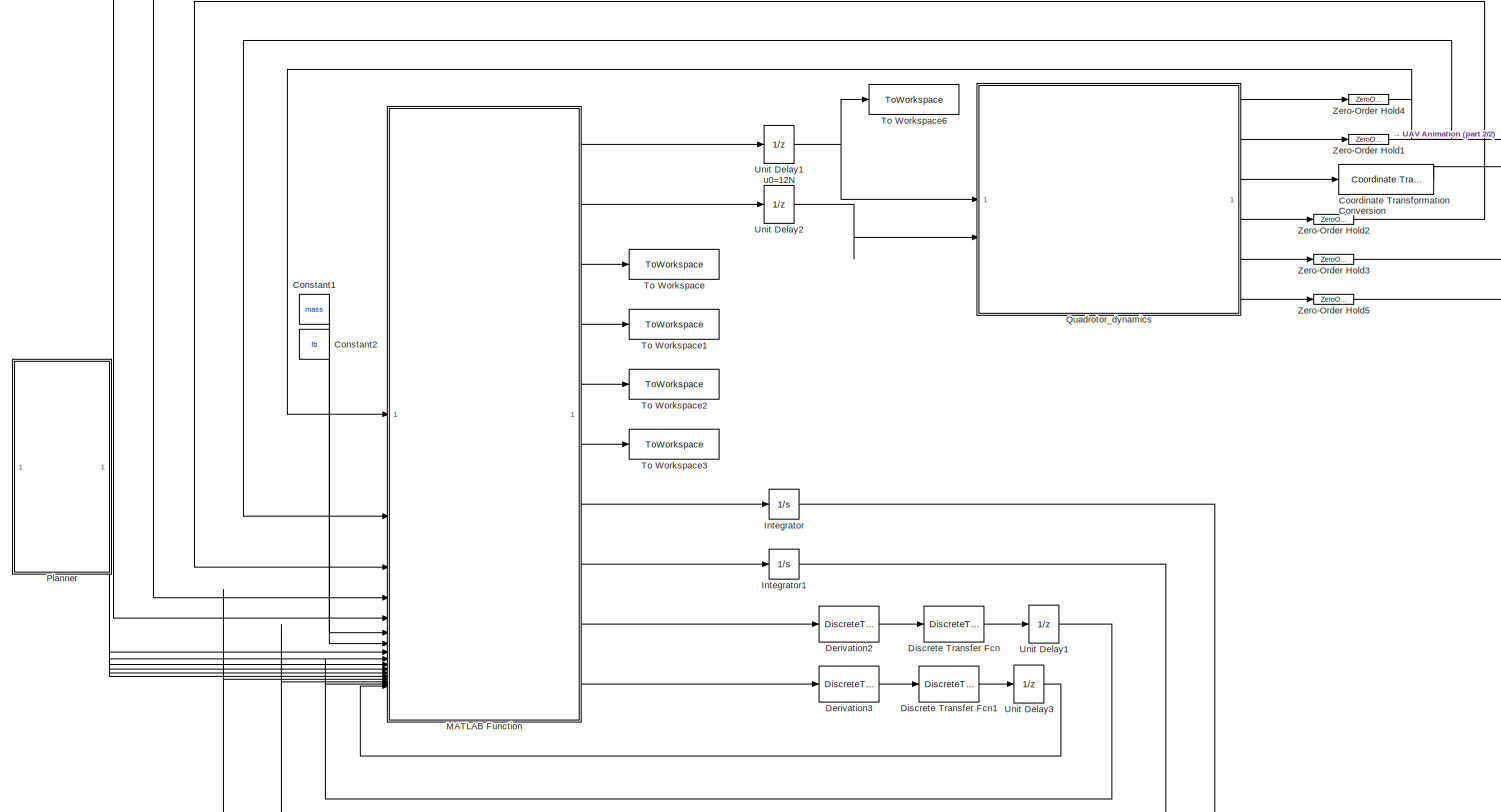
[diagram: root canvas - part 1/2, most of the canvas]
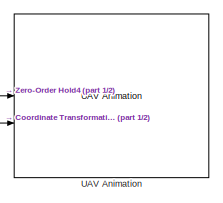
[diagram: root canvas - part 2/2, top right region]
MODEL slx_6ba06d13a4f2
KIND model
CONFIG AbsTol = auto
CONFIG EnableMultiTasking = off
CONFIG FixedStep = auto
CONFIG InitFcn = addpath('TRAJECTORIES\');\n%square_coplanar\ncircular_coplanar;
CONFIG MaxStep = auto
CONFIG MinStep = auto
CONFIG RelTol = 1e-3
CONFIG SampleTimeConstraint = Unconstrained
CONFIG SolverName = VariableStepAuto
CONFIG StartFcn = %% Setup Video e Timer\nvideoFile = 'Adaptative_quad.avi';\n%videoFile = 'Adaptative_circ.avi';\nvideoObj = VideoWriter(videoFile);\nvideoObj.FrameRate = 30;\nopen(videoObj);\nassignin('base','videoObj',videoObj);\n \n \nt = timer('ExecutionMode','fixedSpacing','Period',0.05,'StartDelay',2,...\n          'TimerFcn',@(~,~) captureFrame(findall(0,'Type','figure','Name','UAV Animation'), videoObj));\nstart(t);\n...<+36ch>
CONFIG StartTime = 0.0
CONFIG StopFcn = % Default graphics settings\nset(0, 'DefaultTextInterpreter', 'latex')\nset(0, 'DefaultLegendInterpreter', 'latex')\nset(0, 'DefaultAxesTickLabelInterpreter', 'latex')\nlw = 2;\n\nplot_errors = figure('Renderer', 'painters', 'Position', [10 10 900 650]);    \n\nsubplot(2,1,1)\nplot(out.tout, out.err_p.signals.values(1,:), 'k-', 'Linewidth', lw ,'Color', [0.2, 0.2, 0.2]);\nhold on\nplot(out.tout, out.err_p.si...<+3322ch>
CONFIG StopTime = tot_time
BLOCK [Constant] Constant1
  Value = mass
BLOCK [Constant] Constant2
  Value = Ib
BLOCK [Reference] Coordinate Transformation Conversion  REF=robotcorelib/Coordinate Transformation Conversion
  SourceBlock = robotcorelib/Coordinate Transformation Conversion
  SourceType = robotics.slcore.internal.block.CoordinateTransformationConversion
BLOCK [DiscreteTransferFcn] Derivation2
  Denominator = [Ts 0]
  InitialStates = [0 0 0]'
  InputPortMap = u0
  Numerator = [1 -1]
  SampleTime = Ts
BLOCK [DiscreteTransferFcn] Derivation3
  Denominator = [Ts 0]
  InitialStates = [0 0 0]'
  InputPortMap = u0
  Numerator = [1 -1]
  SampleTime = Ts
BLOCK [DiscreteTransferFcn] Discrete Transfer Fcn
  Denominator = [1  -0.812]
  InputPortMap = u0
  Numerator = 0.188
BLOCK [DiscreteTransferFcn] Discrete Transfer Fcn1
  Denominator = [1  -0.812]
  InputPortMap = u0
  Numerator = 0.188
BLOCK [Integrator] Integrator
BLOCK [Integrator] Integrator1
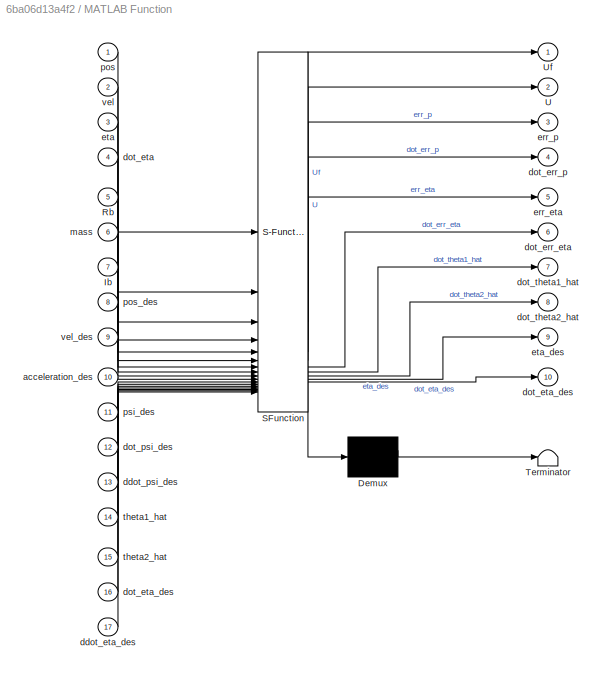
BLOCK [SubSystem] MATLAB Function
  ErrorFcn = Stateflow.Translate.translate
  PermitHierarchicalResolution = ExplicitOnly
  SFBlockType = MATLAB Function
  TreatAsAtomicUnit = on
BLOCK [Demux] MATLAB Function/ Demux 
  Outputs = 1
BLOCK [S-Function] MATLAB Function/ SFunction 
  EnableBusSupport = on
  FunctionName = sf_sfun
  PortCounts = [17 11]
  SFcnIsStateOwnerBlock = off
  SFunctionDeploymentMode = off
  Tag = Stateflow S-Function 5
BLOCK [Terminator] MATLAB Function/ Terminator 
BLOCK [Inport] MATLAB Function/Ib
  Port = 7
BLOCK [Inport] MATLAB Function/Rb
  Port = 5
BLOCK [Outport] MATLAB Function/U
  Port = 2
BLOCK [Outport] MATLAB Function/Uf
BLOCK [Inport] MATLAB Function/acceleration_des
  Port = 10
BLOCK [Inport] MATLAB Function/ddot_eta_des
  Port = 17
BLOCK [Inport] MATLAB Function/ddot_psi_des
  Port = 13
BLOCK [Outport] MATLAB Function/dot_err_eta
  Port = 6
BLOCK [Outport] MATLAB Function/dot_err_p
  Port = 4
BLOCK [Inport] MATLAB Function/dot_eta
  Port = 4
BLOCK [Outport] MATLAB Function/dot_eta_des
  Port = 10
BLOCK [Inport] MATLAB Function/dot_eta_des 
  Port = 16
BLOCK [Inport] MATLAB Function/dot_psi_des
  Port = 12
BLOCK [Outport] MATLAB Function/dot_theta1_hat
  Port = 7
BLOCK [Outport] MATLAB Function/dot_theta2_hat
  Port = 8
BLOCK [Outport] MATLAB Function/err_eta
  Port = 5
BLOCK [Outport] MATLAB Function/err_p
  Port = 3
BLOCK [Inport] MATLAB Function/eta
  Port = 3
BLOCK [Outport] MATLAB Function/eta_des
  Port = 9
BLOCK [Inport] MATLAB Function/mass
  Port = 6
BLOCK [Inport] MATLAB Function/pos
BLOCK [Inport] MATLAB Function/pos_des
  Port = 8
BLOCK [Inport] MATLAB Function/psi_des
  Port = 11
BLOCK [Inport] MATLAB Function/theta1_hat
  Port = 14
BLOCK [Inport] MATLAB Function/theta2_hat
  Port = 15
BLOCK [Inport] MATLAB Function/vel
  Port = 2
BLOCK [Inport] MATLAB Function/vel_des
  Port = 9
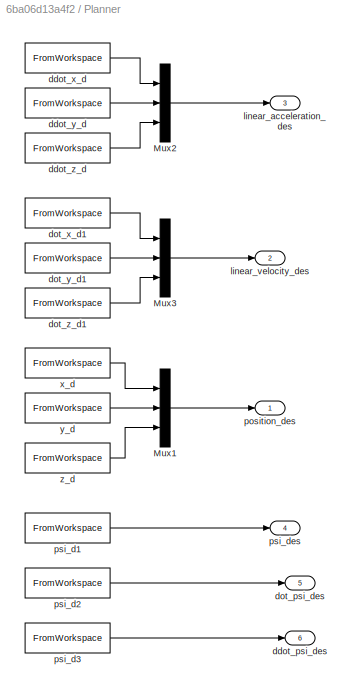
BLOCK [SubSystem] Planner
BLOCK [Mux] Planner/Mux1
  DisplayOption = bar
  Inputs = 3
BLOCK [Mux] Planner/Mux2
  DisplayOption = bar
  Inputs = 3
BLOCK [Mux] Planner/Mux3
  DisplayOption = bar
  Inputs = 3
BLOCK [Outport] Planner/ddot_psi_des
  Port = 6
BLOCK [FromWorkspace] Planner/ddot_x_d
  SampleTime = Ts
  VariableName = [t' ddot_csi_d(1,:)']
BLOCK [FromWorkspace] Planner/ddot_y_d
  SampleTime = Ts
  VariableName = [t' ddot_csi_d(2,:)']
BLOCK [FromWorkspace] Planner/ddot_z_d
  SampleTime = Ts
  VariableName = [t' ddot_csi_d(3,:)']
BLOCK [Outport] Planner/dot_psi_des
  Port = 5
BLOCK [FromWorkspace] Planner/dot_x_d1
  SampleTime = Ts
  VariableName = [t' dot_csi_d(1,:)']
BLOCK [FromWorkspace] Planner/dot_y_d1
  SampleTime = Ts
  VariableName = [t' dot_csi_d(2,:)']
BLOCK [FromWorkspace] Planner/dot_z_d1
  SampleTime = Ts
  VariableName = [t' dot_csi_d(3,:)']
BLOCK [Outport] Planner/linear_acceleration_des
  Port = 3
BLOCK [Outport] Planner/linear_velocity_des
  Port = 2
BLOCK [Outport] Planner/position_des
BLOCK [FromWorkspace] Planner/psi_d1
  SampleTime = Ts
  VariableName = [t' psi_d']
BLOCK [FromWorkspace] Planner/psi_d2
  SampleTime = Ts
  VariableName = [t' dot_psi_d']
BLOCK [FromWorkspace] Planner/psi_d3
  SampleTime = Ts
  VariableName = [t' ddot_psi_d']
BLOCK [Outport] Planner/psi_des
  Port = 4
BLOCK [FromWorkspace] Planner/x_d
  SampleTime = Ts
  VariableName = [t' csi_d(1,:)']
BLOCK [FromWorkspace] Planner/y_d
  SampleTime = Ts
  VariableName = [t' csi_d(2,:)']
BLOCK [FromWorkspace] Planner/z_d
  SampleTime = Ts
  VariableName = [t' csi_d(3,:)']
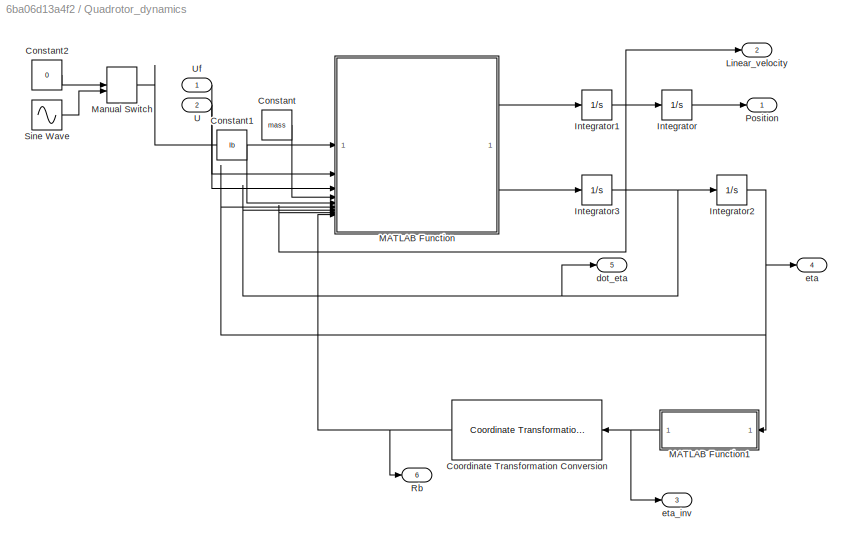
BLOCK [SubSystem] Quadrotor_dynamics
BLOCK [Constant] Quadrotor_dynamics/Constant
  Value = mass
BLOCK [Constant] Quadrotor_dynamics/Constant1
  Value = Ib
BLOCK [Constant] Quadrotor_dynamics/Constant2
  Value = 0
BLOCK [Reference] Quadrotor_dynamics/Coordinate Transformation Conversion  REF=robotcorelib/Coordinate Transformation Conversion
  LibrarySourceBlock = robotutilslib/Coordinate Transformation Conversion
  NameLocation = top
  SourceBlock = robotcorelib/Coordinate Transformation Conversion
  SourceType = robotics.slcore.internal.block.CoordinateTransformationConversion
BLOCK [Integrator] Quadrotor_dynamics/Integrator
  InitialCondition = [0 0 -1]'
BLOCK [Integrator] Quadrotor_dynamics/Integrator1
  InitialCondition = lin_vel_0'
BLOCK [Integrator] Quadrotor_dynamics/Integrator2
  InitialCondition = [0,0,0]'
BLOCK [Integrator] Quadrotor_dynamics/Integrator3
  InitialCondition = [0 0 0]'
BLOCK [Outport] Quadrotor_dynamics/Linear_velocity
  Port = 2
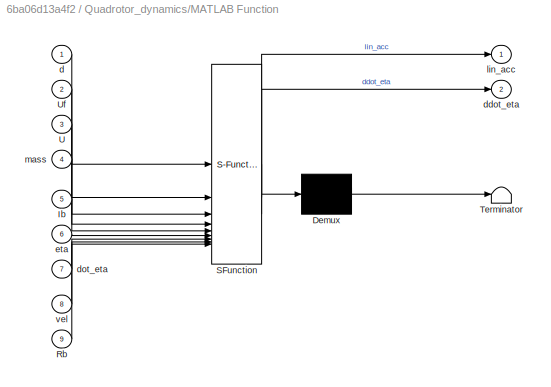
BLOCK [SubSystem] Quadrotor_dynamics/MATLAB Function
  ErrorFcn = Stateflow.Translate.translate
  PermitHierarchicalResolution = ExplicitOnly
  SFBlockType = MATLAB Function
  TreatAsAtomicUnit = on
BLOCK [Demux] Quadrotor_dynamics/MATLAB Function/ Demux 
  Outputs = 1
BLOCK [S-Function] Quadrotor_dynamics/MATLAB Function/ SFunction 
  EnableBusSupport = on
  FunctionName = sf_sfun
  PortCounts = [9 3]
  SFcnIsStateOwnerBlock = off
  SFunctionDeploymentMode = off
  Tag = Stateflow S-Function 4
BLOCK [Terminator] Quadrotor_dynamics/MATLAB Function/ Terminator 
BLOCK [Inport] Quadrotor_dynamics/MATLAB Function/Ib
  Port = 5
BLOCK [Inport] Quadrotor_dynamics/MATLAB Function/Rb
  Port = 9
BLOCK [Inport] Quadrotor_dynamics/MATLAB Function/U
  Port = 3
BLOCK [Inport] Quadrotor_dynamics/MATLAB Function/Uf
  Port = 2
BLOCK [Inport] Quadrotor_dynamics/MATLAB Function/d
BLOCK [Outport] Quadrotor_dynamics/MATLAB Function/ddot_eta
  Port = 2
BLOCK [Inport] Quadrotor_dynamics/MATLAB Function/dot_eta
  Port = 7
BLOCK [Inport] Quadrotor_dynamics/MATLAB Function/eta
  Port = 6
BLOCK [Outport] Quadrotor_dynamics/MATLAB Function/lin_acc
BLOCK [Inport] Quadrotor_dynamics/MATLAB Function/mass
  Port = 4
BLOCK [Inport] Quadrotor_dynamics/MATLAB Function/vel
  Port = 8
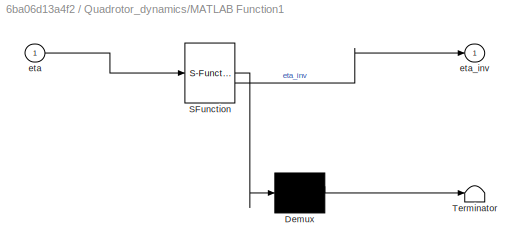
BLOCK [SubSystem] Quadrotor_dynamics/MATLAB Function1
  ErrorFcn = Stateflow.Translate.translate
  NameLocation = top
  PermitHierarchicalResolution = ExplicitOnly
  SFBlockType = MATLAB Function
  TreatAsAtomicUnit = on
BLOCK [Demux] Quadrotor_dynamics/MATLAB Function1/ Demux 
  Outputs = 1
BLOCK [S-Function] Quadrotor_dynamics/MATLAB Function1/ SFunction 
  EnableBusSupport = on
  FunctionName = sf_sfun
  PortCounts = [1 2]
  SFcnIsStateOwnerBlock = off
  SFunctionDeploymentMode = off
  Tag = Stateflow S-Function 3
BLOCK [Terminator] Quadrotor_dynamics/MATLAB Function1/ Terminator 
BLOCK [Inport] Quadrotor_dynamics/MATLAB Function1/eta
BLOCK [Outport] Quadrotor_dynamics/MATLAB Function1/eta_inv
BLOCK [ManualSwitch] Quadrotor_dynamics/Manual Switch
BLOCK [Outport] Quadrotor_dynamics/Position
BLOCK [Outport] Quadrotor_dynamics/Rb
  Port = 6
BLOCK [Sin] Quadrotor_dynamics/Sine Wave
  Frequency = 0.2
  SampleTime = 0
BLOCK [Inport] Quadrotor_dynamics/U
  Port = 2
BLOCK [Inport] Quadrotor_dynamics/Uf
BLOCK [Outport] Quadrotor_dynamics/dot_eta
  Port = 5
BLOCK [Outport] Quadrotor_dynamics/eta
  Port = 4
BLOCK [Outport] Quadrotor_dynamics/eta_inv
  Port = 3
BLOCK [ToWorkspace] To Workspace
  FixptAsFi = on
  MaxDataPoints = inf
  SampleTime = -1
  SaveFormat = Structure With Time
  VariableName = err_p
BLOCK [ToWorkspace] To Workspace1
  FixptAsFi = on
  MaxDataPoints = inf
  SampleTime = -1
  SaveFormat = Structure With Time
  VariableName = dot_err_p
BLOCK [ToWorkspace] To Workspace2
  FixptAsFi = on
  MaxDataPoints = inf
  SampleTime = -1
  SaveFormat = Structure With Time
  VariableName = err_eta
BLOCK [ToWorkspace] To Workspace3
  FixptAsFi = on
  MaxDataPoints = inf
  SampleTime = -1
  SaveFormat = Structure With Time
  VariableName = dot_err_eta
BLOCK [ToWorkspace] To Workspace6
  FixptAsFi = on
  MaxDataPoints = inf
  SampleTime = -1
  SaveFormat = Structure With Time
  VariableName = Uf
BLOCK [Reference] UAV Animation  REF=uavutilslib/UAV Animation
  SourceBlock = uavutilslib/UAV Animation
  SourceType = uav.sluav.internal.system.UAVAnimation
BLOCK [UnitDelay] Unit Delay1
  InitialCondition = [0 0 0]'
  NameLocation = top
  SampleTime = Ts
BLOCK [UnitDelay] Unit Delay1 u0=12N
  InitialCondition = [0 0 12]'
  SampleTime = Ts
BLOCK [UnitDelay] Unit Delay2
  InitialCondition = [0 0 0]'
  SampleTime = Ts
BLOCK [UnitDelay] Unit Delay3
  InitialCondition = [0 0 0]'
  NameLocation = top
  SampleTime = Ts
BLOCK [ZeroOrderHold] Zero-Order Hold1
  SampleTime = Ts
BLOCK [ZeroOrderHold] Zero-Order Hold2
  SampleTime = Ts
BLOCK [ZeroOrderHold] Zero-Order Hold3
  SampleTime = Ts
BLOCK [ZeroOrderHold] Zero-Order Hold4
  SampleTime = Ts
BLOCK [ZeroOrderHold] Zero-Order Hold5
  SampleTime = Ts
LINE Constant1:1 -> MATLAB Function:6
LINE Constant2:1 -> MATLAB Function:7
LINE Coordinate Transformation Conversion:1 -> UAV Animation:2
LINE Derivation2:1 -> Discrete Transfer Fcn:1
LINE Derivation3:1 -> Discrete Transfer Fcn1:1
LINE Discrete Transfer Fcn1:1 -> Unit Delay3:1
LINE Discrete Transfer Fcn:1 -> Unit Delay1:1
LINE Integrator1:1 -> MATLAB Function:15
LINE Integrator:1 -> MATLAB Function:14
LINE MATLAB Function:1 -> Unit Delay1 u0=12N:1
LINE MATLAB Function:10 -> Derivation3:1
LINE MATLAB Function:2 -> Unit Delay2:1
LINE MATLAB Function:3 -> To Workspace:1
LINE MATLAB Function:4 -> To Workspace1:1
LINE MATLAB Function:5 -> To Workspace2:1
LINE MATLAB Function:6 -> To Workspace3:1
LINE MATLAB Function:7 -> Integrator:1
LINE MATLAB Function:8 -> Integrator1:1
LINE MATLAB Function:9 -> Derivation2:1
LINE Planner/Mux1:1 -> Planner/position_des:1
LINE Planner/Mux2:1 -> Planner/linear_acceleration_des:1
LINE Planner/Mux3:1 -> Planner/linear_velocity_des:1
LINE Planner/ddot_x_d:1 -> Planner/Mux2:1
LINE Planner/ddot_y_d:1 -> Planner/Mux2:2
LINE Planner/ddot_z_d:1 -> Planner/Mux2:3
LINE Planner/dot_x_d1:1 -> Planner/Mux3:1
LINE Planner/dot_y_d1:1 -> Planner/Mux3:2
LINE Planner/dot_z_d1:1 -> Planner/Mux3:3
LINE Planner/psi_d1:1 -> Planner/psi_des:1
LINE Planner/psi_d2:1 -> Planner/dot_psi_des:1
LINE Planner/psi_d3:1 -> Planner/ddot_psi_des:1
LINE Planner/x_d:1 -> Planner/Mux1:1
LINE Planner/y_d:1 -> Planner/Mux1:2
LINE Planner/z_d:1 -> Planner/Mux1:3
LINE Planner:1 -> MATLAB Function:8
LINE Planner:2 -> MATLAB Function:9
LINE Planner:3 -> MATLAB Function:10
LINE Planner:4 -> MATLAB Function:11
LINE Planner:5 -> MATLAB Function:12
LINE Planner:6 -> MATLAB Function:13
LINE Quadrotor_dynamics/Constant1:1 -> Quadrotor_dynamics/MATLAB Function:5
LINE Quadrotor_dynamics/Constant2:1 -> Quadrotor_dynamics/Manual Switch:1
LINE Quadrotor_dynamics/Constant:1 -> Quadrotor_dynamics/MATLAB Function:4
NET Quadrotor_dynamics/Coordinate Transformation Conversion:1 -> Quadrotor_dynamics/MATLAB Function:9, Quadrotor_dynamics/Rb:1
NET Quadrotor_dynamics/Integrator1:1 -> Quadrotor_dynamics/Integrator:1, Quadrotor_dynamics/Linear_velocity:1, Quadrotor_dynamics/MATLAB Function:8
NET Quadrotor_dynamics/Integrator2:1 -> Quadrotor_dynamics/MATLAB Function1:1, Quadrotor_dynamics/MATLAB Function:6, Quadrotor_dynamics/eta:1
NET Quadrotor_dynamics/Integrator3:1 -> Quadrotor_dynamics/Integrator2:1, Quadrotor_dynamics/MATLAB Function:7, Quadrotor_dynamics/dot_eta:1
LINE Quadrotor_dynamics/Integrator:1 -> Quadrotor_dynamics/Position:1
NET Quadrotor_dynamics/MATLAB Function1:1 -> Quadrotor_dynamics/Coordinate Transformation Conversion:1, Quadrotor_dynamics/eta_inv:1
LINE Quadrotor_dynamics/MATLAB Function:1 -> Quadrotor_dynamics/Integrator1:1
LINE Quadrotor_dynamics/MATLAB Function:2 -> Quadrotor_dynamics/Integrator3:1
LINE Quadrotor_dynamics/Manual Switch:1 -> Quadrotor_dynamics/MATLAB Function:1
LINE Quadrotor_dynamics/Sine Wave:1 -> Quadrotor_dynamics/Manual Switch:2
LINE Quadrotor_dynamics/U:1 -> Quadrotor_dynamics/MATLAB Function:3
LINE Quadrotor_dynamics/Uf:1 -> Quadrotor_dynamics/MATLAB Function:2
LINE Quadrotor_dynamics:1 -> Zero-Order Hold4:1
LINE Quadrotor_dynamics:2 -> Zero-Order Hold1:1
LINE Quadrotor_dynamics:3 -> Coordinate Transformation Conversion:1
LINE Quadrotor_dynamics:4 -> Zero-Order Hold2:1
LINE Quadrotor_dynamics:5 -> Zero-Order Hold3:1
LINE Quadrotor_dynamics:6 -> Zero-Order Hold5:1
NET Unit Delay1 u0=12N:1 -> Quadrotor_dynamics:1, To Workspace6:1
LINE Unit Delay1:1 -> MATLAB Function:16
LINE Unit Delay2:1 -> Quadrotor_dynamics:2
LINE Unit Delay3:1 -> MATLAB Function:17
LINE Zero-Order Hold1:1 -> MATLAB Function:2
LINE Zero-Order Hold2:1 -> MATLAB Function:3
LINE Zero-Order Hold3:1 -> MATLAB Function:4
NET Zero-Order Hold4:1 -> MATLAB Function:1, UAV Animation:1
LINE Zero-Order Hold5:1 -> MATLAB Function:5
note: NET lines group one-source signal fan-out (src -> all destinations, sorted); 1:1 wires keep LINE
CHART Quadrotor_dynamics/MATLAB Function1 states=1 transitions=1
  STATE_LABEL 'eML_blk_kernel()'
  STATE_LABEL "SCRIPT:\nfunction eta_inv = fcn(eta)\n\neta_inv = [eta(3) eta(2) eta(1)]';\n"
CHART Quadrotor_dynamics/MATLAB Function states=1 transitions=1
  STATE_LABEL 'eML_blk_kernel()'
  STATE_LABEL "SCRIPT:\nfunction [lin_acc,ddot_eta] = fcn(d,Uf,U,mass, Ib , eta, dot_eta, vel,Rb)\n    \n    \n    L = diag([0.48 1.2 1.44]);\n    lin_acc = inv(mass*Rb')*Uf -(1/mass)*L*vel - 9.81*[0 0 1]'+d*ones(3,1);\n    B = [1 0 -sin(eta(2));0 cos(eta(1)) cos(eta(2))*sin(eta(1));0 -sin(eta(1)) cos(eta(1))*cos(eta(2))];\n\n    D = [-cos(eta(2))*dot_eta(2)*dot_eta(3);\n         -sin(eta(1))*dot_eta(1)*dot_eta(2)+cos(et...<+1198ch>"
CHART MATLAB Function states=1 transitions=1
  STATE_LABEL 'eML_blk_kernel()'
  STATE_LABEL 'SCRIPT:\nfunction [Uf, U, err_p, dot_err_p, err_eta, dot_err_eta, dot_theta1_hat, dot_theta2_hat, eta_des, dot_eta_des] = compute_control_input(pos, vel, eta, dot_eta, Rb, mass, Ib, ...\npos_des, vel_des, acceleration_des, psi_des, dot_psi_des, ddot_psi_des, theta1_hat, theta2_hat, dot_eta_des, ddot_eta_des)\n    \n    %Compute linear errors\n    err_p = pos_des - pos;\n    dot_err_p = vel_des - vel;\n\n ...<+1678ch>'
CHART  states=0 transitions=0
CHART  states=0 transitions=0
CHART  states=0 transitions=0
